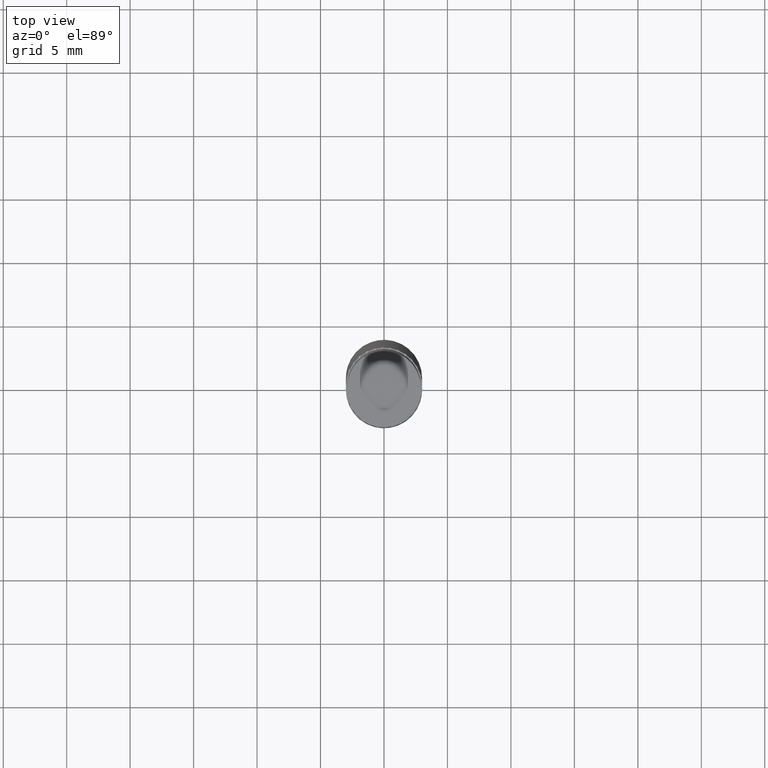
[diagram: clean part render]
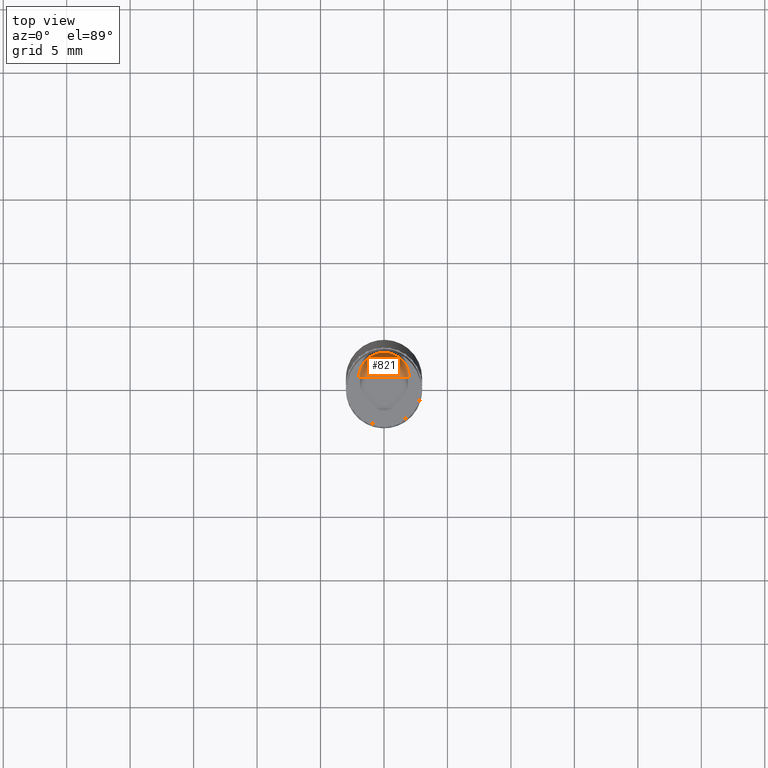
[diagram: same view with one face highlighted and labeled with its STEP entity id]
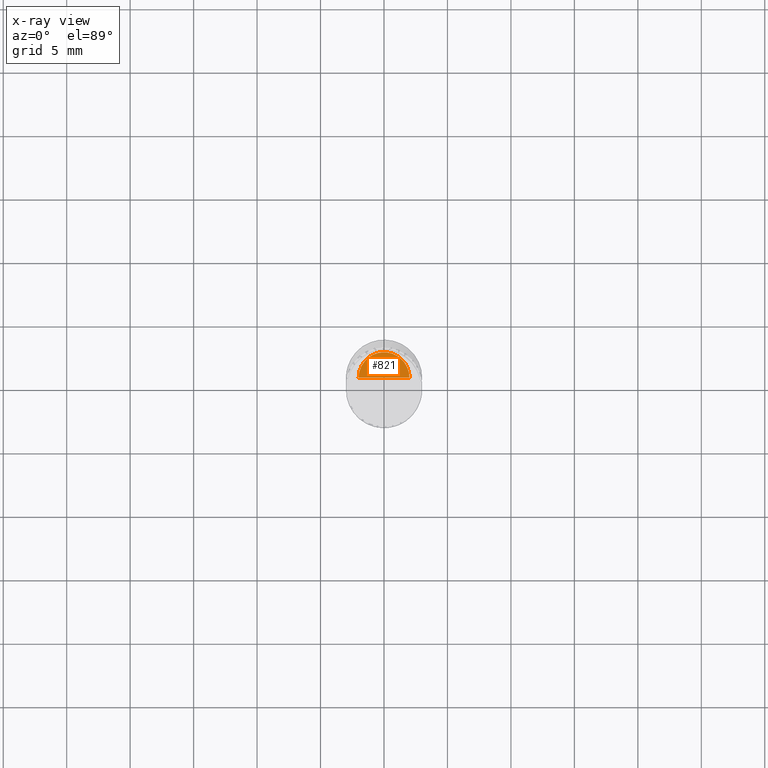
[diagram: x-ray of the same camera — body ghosted, the highlighted face saturated]
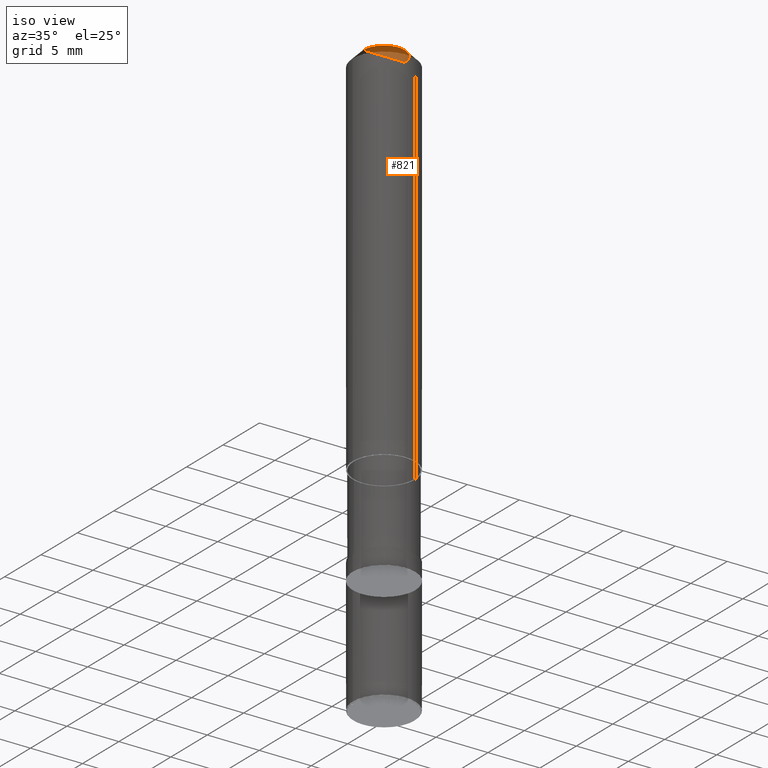
[diagram: same view with one face highlighted and labeled with its STEP entity id]
A machine part, top view. The second image highlights one B-rep face of the part: STEP entity #821.
The next image is the same camera in x-ray: the body ghosted, the highlighted face saturated — about 0% of this face is hidden behind the body in this view.
A second angle (iso view) of the same face is appended — the face is thin or edge-on in the first view.
In plain terms, the highlighted face is a freeform B-spline surface patch.
Its self-contained STEP definition (entity closure, byte-faithful):
#493=CARTESIAN_POINT('',(2.0,0.0,36.0));
#494=CARTESIAN_POINT('',(2.0,2.0,36.0));
#495=CARTESIAN_POINT('',(0.0,2.0,36.0));
#496=CARTESIAN_POINT('',(-2.0,2.0,36.0));
#497=CARTESIAN_POINT('',(-2.0,0.0,36.0));
#498=CARTESIAN_POINT('',(0.0,0.0,36.0));
#806=(
BOUNDED_SURFACE()
B_SPLINE_SURFACE(1,2,(
(#493,#494,#495,#496,#497),
(#498,#498,#498,#498,#498)
), .UNSPECIFIED.,.F.,.F.,.F.)
B_SPLINE_SURFACE_WITH_KNOTS((2,2),(3,2,3),(
0.0,1.0),(
0.0,0.5,1.0), .UNSPECIFIED.)
GEOMETRIC_REPRESENTATION_ITEM()
RATIONAL_B_SPLINE_SURFACE(((1.0,0.707106781187,1.0,0.707106781187,1.0),
(1.0,0.707106781187,1.0,0.707106781187,1.0)
))
REPRESENTATION_ITEM('')
SURFACE()
);
#807=(
BOUNDED_CURVE()
B_SPLINE_CURVE(2,(#497,#496,#495,#494,#493),.UNSPECIFIED.,.F.,.F.)
B_SPLINE_CURVE_WITH_KNOTS((3,2,3),
(0.0,0.5,1.0),.UNSPECIFIED.)
CURVE()
GEOMETRIC_REPRESENTATION_ITEM()
RATIONAL_B_SPLINE_CURVE((1.0,0.707106781187,1.0,0.707106781187,1.0))
REPRESENTATION_ITEM('')
);
#808=(
BOUNDED_CURVE()
B_SPLINE_CURVE(1,(#493,#498),.UNSPECIFIED.,.F.,.F.)
B_SPLINE_CURVE_WITH_KNOTS((2,2),
(0.0,1.0),.UNSPECIFIED.)
CURVE()
GEOMETRIC_REPRESENTATION_ITEM()
RATIONAL_B_SPLINE_CURVE((1.0,1.0))
REPRESENTATION_ITEM('')
);
#809=(
BOUNDED_CURVE()
B_SPLINE_CURVE(1,(#498,#497),.UNSPECIFIED.,.F.,.F.)
B_SPLINE_CURVE_WITH_KNOTS((2,2),
(0.0,1.0),.UNSPECIFIED.)
CURVE()
GEOMETRIC_REPRESENTATION_ITEM()
RATIONAL_B_SPLINE_CURVE((1.0,1.0))
REPRESENTATION_ITEM('')
);
#810=VERTEX_POINT('',#493);
#811=VERTEX_POINT('',#497);
#812=VERTEX_POINT('',#498);
#813=EDGE_CURVE('',#811,#810,#807,.T.);
#814=EDGE_CURVE('',#810,#812,#808,.T.);
#815=EDGE_CURVE('',#812,#811,#809,.T.);
#816=ORIENTED_EDGE('',*,*,#813,.T.);
#817=ORIENTED_EDGE('',*,*,#814,.T.);
#818=ORIENTED_EDGE('',*,*,#815,.T.);
#819=EDGE_LOOP('',(#816,#817,#818));
#820=FACE_OUTER_BOUND('',#819,.T.);
#821=ADVANCED_FACE('',(#820),#806,.T.);